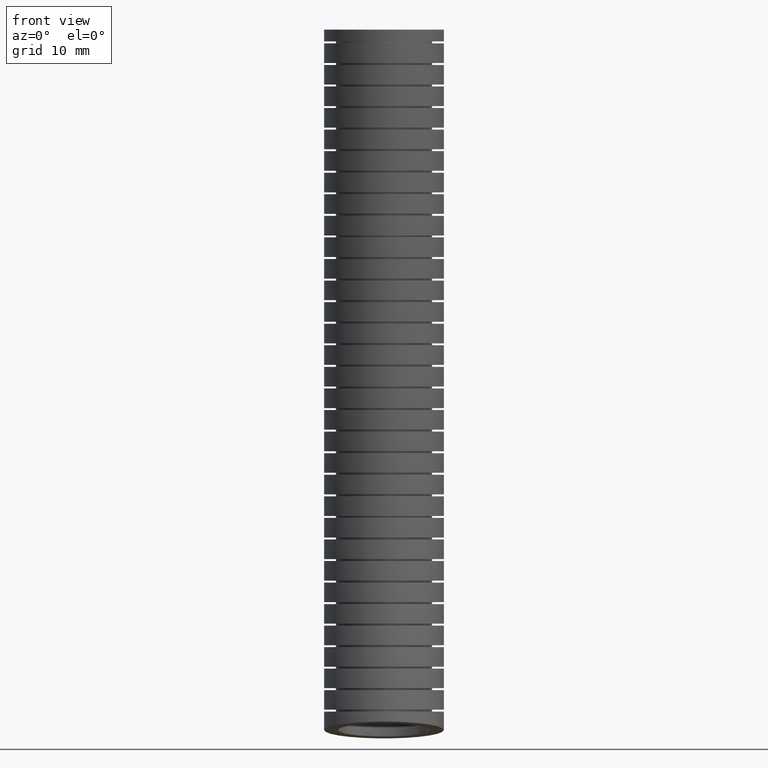
[diagram: clean part render]
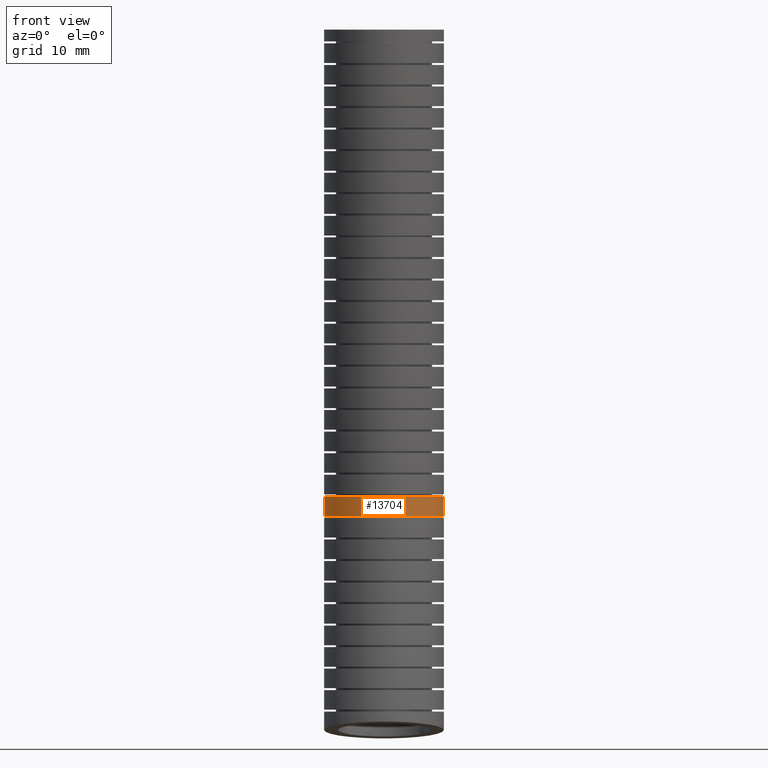
[diagram: same view with one face highlighted and labeled with its STEP entity id]
A machine part, front view. The second image highlights one B-rep face of the part: STEP entity #13704.
In plain terms, the highlighted face is a freeform B-spline surface patch.
Its self-contained STEP definition (entity closure, byte-faithful):
#764 = FACE_OUTER_BOUND ( 'NONE', #13701, .T. ) ;
#766 = CARTESIAN_POINT ( 'NONE',  ( 0.3050000000000000500, 0.05077321592231180700, -2.378945303618446700 ) ) ;
#835 = CARTESIAN_POINT ( 'NONE',  ( 0.3049999999999999400, -0.6339397472009050700, -3.484228316147418800 ) ) ;
#836 = CARTESIAN_POINT ( 'NONE',  ( 0.3049999999999999400, -0.6165911457587421900, -3.301565899820480900 ) ) ;
#837 = CARTESIAN_POINT ( 'NONE',  ( 0.3049999999999999400, -0.5689348463287677800, -2.799795492787948300 ) ) ;
#838 = CARTESIAN_POINT ( 'NONE',  ( 0.3050000000000000500, -0.5337097317260344200, -1.651227135941712300 ) ) ;
#839 = CARTESIAN_POINT ( 'NONE',  ( 0.3050000000000000500, -0.5794800608306244200, -0.6605737911785694000 ) ) ;
#840 = CARTESIAN_POINT ( 'NONE',  ( 0.3050000000000000500, -0.6100000000000001000, 0.0000000000000000000 ) ) ;
#841 = CARTESIAN_POINT ( 'NONE',  ( 0.3049999999999999900, -0.02999999999999999900, -3.569999999999999400 ) ) ;
#842 = CARTESIAN_POINT ( 'NONE',  ( 0.3049999999999999400, -0.01189670328115252300, -3.380058092153300100 ) ) ;
#843 = CARTESIAN_POINT ( 'NONE',  ( 0.3049999999999999900, 0.03783273064349424600, -2.858291051460112500 ) ) ;
#844 = CARTESIAN_POINT ( 'NONE',  ( 0.3049999999999999900, 0.07694042471324438700, -1.669468061939300500 ) ) ;
#845 = CARTESIAN_POINT ( 'NONE',  ( 0.3050000000000000500, 0.03078003440073750300, -0.6678710777714059700 ) ) ;
#846 = CARTESIAN_POINT ( 'NONE',  ( 0.3050000000000000500, 0.0000000000000000000, 0.0000000000000000000 ) ) ;
#849 =( BOUNDED_SURFACE ( )  B_SPLINE_SURFACE ( 3, 3, ( 
 ( #846, #845, #844, #843, #842, #841 ),
 ( #840, #839, #838, #837, #836, #835 ),
 ( #881, #880, #879, #878, #877, #876 ),
 ( #875, #874, #873, #872, #871, #870 ),
 ( #869, #868, #867, #866, #865, #864 ),
 ( #863, #862, #861, #860, #859, #858 ),
 ( #857, #856, #855, #854, #853, #852 ) ),
 .UNSPECIFIED., .F., .F., .F. ) 
 B_SPLINE_SURFACE_WITH_KNOTS ( ( 4, 3, 4 ),
 ( 4, 1, 1, 4 ),
 ( 0.0000000000000000000, 0.5000000000000000000, 1.000000000000000000 ),
 ( 0.0000000000000000000, 0.5599999999999999400, 0.8398242262648183400, 1.000000000000000000 ),
 .UNSPECIFIED. ) 
 GEOMETRIC_REPRESENTATION_ITEM ( )  RATIONAL_B_SPLINE_SURFACE ( (
 ( 1.000000000000000000, 1.000000000000000000, 1.000000000000000200, 1.000000000000000000, 1.000000000000000000, 1.000000000000000000),
 ( 0.3333333333333333100, 0.3333333333333333100, 0.3333333333333333100, 0.3333333333333333100, 0.3333333333333333100, 0.3333333333333333100),
 ( 0.3333333333333333100, 0.3333333333333333100, 0.3333333333333333100, 0.3333333333333333100, 0.3333333333333333100, 0.3333333333333333100),
 ( 1.000000000000000000, 1.000000000000000000, 1.000000000000000200, 1.000000000000000000, 1.000000000000000000, 1.000000000000000000),
 ( 0.3333333333333333100, 0.3333333333333333100, 0.3333333333333333100, 0.3333333333333333100, 0.3333333333333333100, 0.3333333333333333100),
 ( 0.3333333333333333100, 0.3333333333333333100, 0.3333333333333333100, 0.3333333333333333100, 0.3333333333333333100, 0.3333333333333333100),
 ( 1.000000000000000000, 1.000000000000000000, 1.000000000000000200, 1.000000000000000000, 1.000000000000000000, 1.000000000000000000) ) ) 
 REPRESENTATION_ITEM ( '' )  SURFACE ( )  );
#852 = CARTESIAN_POINT ( 'NONE',  ( 0.3049999999999999900, -0.02999999999999999900, -3.569999999999999400 ) ) ;
#853 = CARTESIAN_POINT ( 'NONE',  ( 0.3049999999999999400, -0.01189670328115252300, -3.380058092153300100 ) ) ;
#854 = CARTESIAN_POINT ( 'NONE',  ( 0.3049999999999999900, 0.03783273064349424600, -2.858291051460112500 ) ) ;
#855 = CARTESIAN_POINT ( 'NONE',  ( 0.3049999999999999900, 0.07694042471324438700, -1.669468061939300500 ) ) ;
#856 = CARTESIAN_POINT ( 'NONE',  ( 0.3050000000000000500, 0.03078003440073750300, -0.6678710777714059700 ) ) ;
#857 = CARTESIAN_POINT ( 'NONE',  ( 0.3050000000000000500, 0.0000000000000000000, 0.0000000000000000000 ) ) ;
#858 = CARTESIAN_POINT ( 'NONE',  ( 0.3049999999999999400, 0.5739397472009051300, -3.655771683852579600 ) ) ;
#859 = CARTESIAN_POINT ( 'NONE',  ( 0.3049999999999999400, 0.5927977391964371900, -3.458550284486119800 ) ) ;
#860 = CARTESIAN_POINT ( 'NONE',  ( 0.3049999999999999400, 0.6446003076157559300, -2.916786610132277200 ) ) ;
#861 = CARTESIAN_POINT ( 'NONE',  ( 0.3050000000000000500, 0.6875905811525232500, -1.687708987936889400 ) ) ;
#862 = CARTESIAN_POINT ( 'NONE',  ( 0.3050000000000000500, 0.6410401296320993300, -0.6751683643642422100 ) ) ;
#863 = CARTESIAN_POINT ( 'NONE',  ( 0.3050000000000000500, 0.6100000000000001000, 0.0000000000000000000 ) ) ;
#864 = CARTESIAN_POINT ( 'NONE',  ( -0.3049999999999998800, 0.5739397472009051300, -3.655771683852579600 ) ) ;
#865 = CARTESIAN_POINT ( 'NONE',  ( -0.3049999999999998800, 0.5927977391964373000, -3.458550284486119800 ) ) ;
#866 = CARTESIAN_POINT ( 'NONE',  ( -0.3049999999999999400, 0.6446003076157562600, -2.916786610132277200 ) ) ;
#867 = CARTESIAN_POINT ( 'NONE',  ( -0.3049999999999999400, 0.6875905811525234700, -1.687708987936889400 ) ) ;
#868 = CARTESIAN_POINT ( 'NONE',  ( -0.3049999999999999400, 0.6410401296320996600, -0.6751683643642422100 ) ) ;
#869 = CARTESIAN_POINT ( 'NONE',  ( -0.3049999999999999400, 0.6100000000000001000, 0.0000000000000000000 ) ) ;
#870 = CARTESIAN_POINT ( 'NONE',  ( -0.3049999999999999900, -0.02999999999999996100, -3.569999999999999400 ) ) ;
#871 = CARTESIAN_POINT ( 'NONE',  ( -0.3049999999999999400, -0.01189670328115248300, -3.380058092153300100 ) ) ;
#872 = CARTESIAN_POINT ( 'NONE',  ( -0.3049999999999999900, 0.03783273064349428100, -2.858291051460112500 ) ) ;
#873 = CARTESIAN_POINT ( 'NONE',  ( -0.3049999999999999900, 0.07694042471324441500, -1.669468061939300500 ) ) ;
#874 = CARTESIAN_POINT ( 'NONE',  ( -0.3050000000000000500, 0.03078003440073754200, -0.6678710777714059700 ) ) ;
#875 = CARTESIAN_POINT ( 'NONE',  ( -0.3050000000000000500, 3.735172737399427600E-017, 0.0000000000000000000 ) ) ;
#876 = CARTESIAN_POINT ( 'NONE',  ( -0.3050000000000000500, -0.6339397472009050700, -3.484228316147418800 ) ) ;
#877 = CARTESIAN_POINT ( 'NONE',  ( -0.3050000000000000500, -0.6165911457587421900, -3.301565899820480900 ) ) ;
#878 = CARTESIAN_POINT ( 'NONE',  ( -0.3050000000000000500, -0.5689348463287677800, -2.799795492787948300 ) ) ;
#879 = CARTESIAN_POINT ( 'NONE',  ( -0.3050000000000001000, -0.5337097317260344200, -1.651227135941712300 ) ) ;
#880 = CARTESIAN_POINT ( 'NONE',  ( -0.3050000000000001600, -0.5794800608306244200, -0.6605737911785694000 ) ) ;
#881 = CARTESIAN_POINT ( 'NONE',  ( -0.3050000000000001000, -0.6100000000000001000, 0.0000000000000000000 ) ) ;
#1061 = CARTESIAN_POINT ( 'NONE',  ( -0.3050000000000000500, 0.04762693433828677600, -2.478890630591160400 ) ) ;
#1101 = B_SPLINE_CURVE_WITH_KNOTS ( 'NONE', 3,
 ( #1115, #1114, #1113, #1112 ),
 .UNSPECIFIED., .F., .F.,
 ( 4, 4 ),
 ( 0.6655699774920165200, 0.6935919824838685500 ),
 .UNSPECIFIED. ) ;
#1102 = CARTESIAN_POINT ( 'NONE',  ( -0.2894594705316564400, -0.05049995263127419300, -2.478890630591160400 ) ) ;
#1103 = CARTESIAN_POINT ( 'NONE',  ( -0.2952227158728204500, -0.03145639664729527700, -2.478890630591160000 ) ) ;
#1104 = CARTESIAN_POINT ( 'NONE',  ( -0.3010547439263505700, -0.002233203258918987800, -2.478890630591159500 ) ) ;
#1105 = CARTESIAN_POINT ( 'NONE',  ( -0.3025264858621872200, 0.007618313831455478900, -2.478890630591159500 ) ) ;
#1106 = CARTESIAN_POINT ( 'NONE',  ( -0.3045022631452473100, 0.02754767261553343500, -2.478890630591160400 ) ) ;
#1107 = CARTESIAN_POINT ( 'NONE',  ( -0.3050000000000001600, 0.03764139521374901300, -2.478890630591159500 ) ) ;
#1108 = CARTESIAN_POINT ( 'NONE',  ( -0.3050000000000000500, 0.04762693433828677600, -2.478890630591160400 ) ) ;
#1110 = B_SPLINE_CURVE_WITH_KNOTS ( 'NONE', 3,
 ( #1108, #1107, #1106, #1105, #1104, #1103, #1102, #1171, #1170, #1169, #1168, #1167, #1166, #1165, #1164, #1163, #1162, #1161, #1160, #1159, #1158, #1157, #1156, #1155, #1154, #1153, #1152, #1151, #1150, #1149, #1148, #1147, #1146, #1145, #1144, #1143, #1142, #1141, #1140, #1139, #1138, #1137, #1136, #1135, #1134 ),
 .UNSPECIFIED., .F., .F.,
 ( 4, 2, 2, 2, 2, 2, 2, 2, 2, 2, 2, 1, 2, 2, 2, 2, 2, 2, 2, 2, 2, 2, 4 ),
 ( 0.02447060056067219800, 0.02523534043249534700, 0.02600008030431849600, 0.02752956004796479300, 0.02905903979161109100, 0.02982377966343424300, 0.03058851953525739200, 0.03211799927890369300, 0.03364747902254999800, 0.03517695876619629500, 0.03594169863801945100, 0.03670643850984260000, 0.03747117838166574800, 0.03823591825348890400, 0.03976539799713520200, 0.04053013786895835700, 0.04129487774078151300, 0.04282435748442781100, 0.04358909735625096000, 0.04435383722807410800, 0.04588331697172042000, 0.04741279671536671700, 0.04894227645901302200 ),
 .UNSPECIFIED. ) ;
#1111 = CARTESIAN_POINT ( 'NONE',  ( 0.3050000000000000500, 0.04762693435156142200, -2.478890630399940100 ) ) ;
#1112 = CARTESIAN_POINT ( 'NONE',  ( 0.3050000000000000500, 0.04762693435156142200, -2.478890630399940100 ) ) ;
#1113 = CARTESIAN_POINT ( 'NONE',  ( 0.3050000000000001000, 0.04878316757936334400, -2.445579867282462200 ) ) ;
#1114 = CARTESIAN_POINT ( 'NONE',  ( 0.3050000000000001000, 0.04983046100250379500, -2.412264699031035200 ) ) ;
#1115 = CARTESIAN_POINT ( 'NONE',  ( 0.3050000000000000500, 0.05077321592231180700, -2.378945303618446700 ) ) ;
#1132 = B_SPLINE_CURVE_WITH_KNOTS ( 'NONE', 3,
 ( #1211, #1210, #1209, #1208 ),
 .UNSPECIFIED., .F., .F.,
 ( 4, 4 ),
 ( 0.6655699774916643600, 0.6935919825375532800 ),
 .UNSPECIFIED. ) ;
#1134 = CARTESIAN_POINT ( 'NONE',  ( 0.3050000000000000500, 0.04762693435156142200, -2.478890630399940100 ) ) ;
#1135 = CARTESIAN_POINT ( 'NONE',  ( 0.3050000000000001600, 0.02748543307467832600, -2.478890630399940500 ) ) ;
#1136 = CARTESIAN_POINT ( 'NONE',  ( 0.3029957515154675400, 0.007489417105942149100, -2.478890630591160000 ) ) ;
#1137 = CARTESIAN_POINT ( 'NONE',  ( 0.2952217184166720000, -0.03145799012692851400, -2.478890630591160400 ) ) ;
#1138 = CARTESIAN_POINT ( 'NONE',  ( 0.2894263615874915200, -0.05059299359882461800, -2.478890630591159500 ) ) ;
#1139 = CARTESIAN_POINT ( 'NONE',  ( 0.2740095631499247500, -0.08772479707283770100, -2.478890630591160000 ) ) ;
#1140 = CARTESIAN_POINT ( 'NONE',  ( 0.2646009871399148700, -0.1052468927936732100, -2.478890630591160400 ) ) ;
#1141 = CARTESIAN_POINT ( 'NONE',  ( 0.2480261732880418600, -0.1300185476494691600, -2.478890630591160900 ) ) ;
#1142 = CARTESIAN_POINT ( 'NONE',  ( 0.2420879044807841300, -0.1380220057157705600, -2.478890630591159500 ) ) ;
#1143 = CARTESIAN_POINT ( 'NONE',  ( 0.2293630783324291400, -0.1535081238468670200, -2.478890630591160000 ) ) ;
#1144 = CARTESIAN_POINT ( 'NONE',  ( 0.2225740109165805800, -0.1609824805137474400, -2.478890630591162700 ) ) ;
#1145 = CARTESIAN_POINT ( 'NONE',  ( 0.2013814460595376700, -0.1821274388998621000, -2.478890630591162700 ) ) ;
#1146 = CARTESIAN_POINT ( 'NONE',  ( 0.1860223060043713100, -0.1947100735826417000, -2.478890630591160900 ) ) ;
#1147 = CARTESIAN_POINT ( 'NONE',  ( 0.1611425016777670300, -0.2113192326303407500, -2.478890630591161800 ) ) ;
#1148 = CARTESIAN_POINT ( 'NONE',  ( 0.1524936735622688700, -0.2164992890016412000, -2.478890630591160900 ) ) ;
#1149 = CARTESIAN_POINT ( 'NONE',  ( 0.1347895041235130700, -0.2259435159316714200, -2.478890630591160400 ) ) ;
#1150 = CARTESIAN_POINT ( 'NONE',  ( 0.1257686729744110200, -0.2301961353012913500, -2.478890630591161800 ) ) ;
#1151 = CARTESIAN_POINT ( 'NONE',  ( 0.09821418057216443900, -0.2415851312382909800, -2.478890630591161800 ) ) ;
#1152 = CARTESIAN_POINT ( 'NONE',  ( 0.07919323197051364400, -0.2473657544824220700, -2.478890630591160000 ) ) ;
#1153 = CARTESIAN_POINT ( 'NONE',  ( 0.04965532928637870400, -0.2532364149049078900, -2.478890630591160000 ) ) ;
#1154 = CARTESIAN_POINT ( 'NONE',  ( 0.03969193107396182300, -0.2547075540877393200, -2.478890630591160400 ) ) ;
#1155 = CARTESIAN_POINT ( 'NONE',  ( 0.01985093866260181200, -0.2566520052711839800, -2.478890630591160900 ) ) ;
#1156 = CARTESIAN_POINT ( 'NONE',  ( 2.428516210267459000E-006, -0.2576183058862475100, -2.478890630591158200 ) ) ;
#1157 = CARTESIAN_POINT ( 'NONE',  ( -0.01986093615456624400, -0.2566518486419772600, -2.478890630591160000 ) ) ;
#1158 = CARTESIAN_POINT ( 'NONE',  ( -0.03973185256427035100, -0.2547028165008650700, -2.478890630591160400 ) ) ;
#1159 = CARTESIAN_POINT ( 'NONE',  ( -0.04972598626572534400, -0.2532240289554844000, -2.478890630591160000 ) ) ;
#1160 = CARTESIAN_POINT ( 'NONE',  ( -0.07919800556418633800, -0.2473614791174748000, -2.478890630591159500 ) ) ;
#1161 = CARTESIAN_POINT ( 'NONE',  ( -0.09820830204209045300, -0.2415883253527295300, -2.478890630591159500 ) ) ;
#1162 = CARTESIAN_POINT ( 'NONE',  ( -0.1349794135519233600, -0.2263883293506045200, -2.478890630591160000 ) ) ;
#1163 = CARTESIAN_POINT ( 'NONE',  ( -0.1528905045964775400, -0.2168297941105943300, -2.478890630591160000 ) ) ;
#1164 = CARTESIAN_POINT ( 'NONE',  ( -0.1860176382392228200, -0.1947114610850041200, -2.478890630591160400 ) ) ;
#1165 = CARTESIAN_POINT ( 'NONE',  ( -0.2013829363132886900, -0.1821292795744534600, -2.478890630591160000 ) ) ;
#1166 = CARTESIAN_POINT ( 'NONE',  ( -0.2226114382041555800, -0.1609434690201645700, -2.478890630591160900 ) ) ;
#1167 = CARTESIAN_POINT ( 'NONE',  ( -0.2294079271401327800, -0.1534559974731753200, -2.478890630591160900 ) ) ;
#1168 = CARTESIAN_POINT ( 'NONE',  ( -0.2421035018097603100, -0.1380005574049502600, -2.478890630591160400 ) ) ;
#1169 = CARTESIAN_POINT ( 'NONE',  ( -0.2480341278514235400, -0.1300071974798385800, -2.478890630591162200 ) ) ;
#1170 = CARTESIAN_POINT ( 'NONE',  ( -0.2646004077735335500, -0.1052466815078384700, -2.478890630591162200 ) ) ;
#1171 = CARTESIAN_POINT ( 'NONE',  ( -0.2740355155917352800, -0.08767553618507799300, -2.478890630591160900 ) ) ;
#1172 = CARTESIAN_POINT ( 'NONE',  ( -0.2294321998248394500, -0.1502495506233742500, -2.378945303617190800 ) ) ;
#1173 = CARTESIAN_POINT ( 'NONE',  ( -0.2160778630543842800, -0.1649672986299946800, -2.378945303617189900 ) ) ;
#1174 = CARTESIAN_POINT ( 'NONE',  ( -0.2013523276290081200, -0.1783204198568139100, -2.378945303617192100 ) ) ;
#1175 = CARTESIAN_POINT ( 'NONE',  ( -0.1859309338704791500, -0.1909810178573593300, -2.378945303617192600 ) ) ;
#1176 = CARTESIAN_POINT ( 'NONE',  ( -0.1778246430677591400, -0.1969951533843959100, -2.378945303617192100 ) ) ;
#1177 = CARTESIAN_POINT ( 'NONE',  ( -0.1528204871455703700, -0.2136923374195837400, -2.378945303617190800 ) ) ;
#1178 = CARTESIAN_POINT ( 'NONE',  ( -0.1352913220111265100, -0.2230448990275247500, -2.378945303617190800 ) ) ;
#1179 = CARTESIAN_POINT ( 'NONE',  ( -0.09855510846545458000, -0.2382782524495196100, -2.378945303617190400 ) ) ;
#1180 = CARTESIAN_POINT ( 'NONE',  ( -0.07913717557198971000, -0.2441777095918230600, -2.378945303617190800 ) ) ;
#1181 = CARTESIAN_POINT ( 'NONE',  ( -0.04005919287968749700, -0.2519563308294327500, -2.378945303617191300 ) ) ;
#1182 = CARTESIAN_POINT ( 'NONE',  ( -0.02030206169118367600, -0.2539194712546990500, -2.378945303617192100 ) ) ;
#1183 = CARTESIAN_POINT ( 'NONE',  ( 0.009663512383467290000, -0.2539513723832742500, -2.378945303617192100 ) ) ;
#1184 = CARTESIAN_POINT ( 'NONE',  ( 0.01975965819063551700, -0.2534650905064554400, -2.378945303617191300 ) ) ;
#1185 = CARTESIAN_POINT ( 'NONE',  ( 0.03967854609987610900, -0.2515167906161242500, -2.378945303617192100 ) ) ;
#1186 = CARTESIAN_POINT ( 'NONE',  ( 0.04952786596829806400, -0.2500602545675196200, -2.378945303617194800 ) ) ;
#1187 = CARTESIAN_POINT ( 'NONE',  ( 0.07875292901773318900, -0.2442762345817288700, -2.378945303617194400 ) ) ;
#1188 = CARTESIAN_POINT ( 'NONE',  ( 0.09780894485302510400, -0.2385482211710017200, -2.378945303617192100 ) ) ;
#1189 = CARTESIAN_POINT ( 'NONE',  ( 0.1350304749156393500, -0.2231914527805722600, -2.378945303617193000 ) ) ;
#1190 = CARTESIAN_POINT ( 'NONE',  ( 0.1525958355937790700, -0.2138078721496178800, -2.378945303617193900 ) ) ;
#1191 = CARTESIAN_POINT ( 'NONE',  ( 0.1773932648974272700, -0.1972998975029064700, -2.378945303617193500 ) ) ;
#1192 = CARTESIAN_POINT ( 'NONE',  ( 0.1854014280714505500, -0.1913876727813070300, -2.378945303617192100 ) ) ;
#1193 = CARTESIAN_POINT ( 'NONE',  ( 0.2008908356224747800, -0.1787256097394715700, -2.378945303617192600 ) ) ;
#1194 = CARTESIAN_POINT ( 'NONE',  ( 0.2083926505663114500, -0.1719483811932679700, -2.378945303617192100 ) ) ;
#1195 = CARTESIAN_POINT ( 'NONE',  ( 0.2296188388083417500, -0.1507814637977771500, -2.378945303617192100 ) ) ;
#1196 = CARTESIAN_POINT ( 'NONE',  ( 0.2422366846649620100, -0.1354502052734713700, -2.378945303617192100 ) ) ;
#1197 = CARTESIAN_POINT ( 'NONE',  ( 0.2644349011919960900, -0.1023703434307669500, -2.378945303617192100 ) ) ;
#1198 = CARTESIAN_POINT ( 'NONE',  ( 0.2740303441879690100, -0.08448443078127253200, -2.378945303617193500 ) ) ;
#1199 = CARTESIAN_POINT ( 'NONE',  ( 0.2893008562863522700, -0.04775715210113361900, -2.378945303617193000 ) ) ;
#1200 = CARTESIAN_POINT ( 'NONE',  ( 0.2951108982405433200, -0.02875816797121466900, -2.378945303617190800 ) ) ;
#1201 = CARTESIAN_POINT ( 'NONE',  ( 0.3010236348230326800, 0.0007157792382961342800, -2.378945303617190800 ) ) ;
#1202 = CARTESIAN_POINT ( 'NONE',  ( 0.3025182291270258600, 0.01070238675505087700, -2.378945303617192100 ) ) ;
#1203 = CARTESIAN_POINT ( 'NONE',  ( 0.3045016582100884600, 0.03067591591307207400, -2.378945303617191700 ) ) ;
#1204 = CARTESIAN_POINT ( 'NONE',  ( 0.3050000000000001000, 0.04070379939850498500, -2.378945303618446700 ) ) ;
#1205 = CARTESIAN_POINT ( 'NONE',  ( 0.3050000000000000500, 0.05077321592231180700, -2.378945303618446700 ) ) ;
#1206 = B_SPLINE_CURVE_WITH_KNOTS ( 'NONE', 3,
 ( #1205, #1204, #1203, #1202, #1201, #1200, #1199, #1198, #1197, #1196, #1195, #1194, #1193, #1192, #1191, #1190, #1189, #1188, #1187, #1186, #1185, #1184, #1183, #1182, #1181, #1180, #1179, #1178, #1177, #1176, #1175, #1174, #1173, #1172, #1251, #1250, #1249, #1248, #1247, #1246, #1244, #1243, #1242 ),
 .UNSPECIFIED., .F., .F.,
 ( 4, 2, 2, 2, 2, 2, 2, 2, 2, 2, 2, 2, 2, 2, 2, 2, 1, 2, 2, 2, 2, 4 ),
 ( 0.0000000000000000000, 0.0007646385570034159300, 0.001529277114006831900, 0.003058554228013663700, 0.004587831342020494900, 0.006117108456027327500, 0.006881747013030741100, 0.007646385570034155600, 0.009175662684040982900, 0.01070493979804780900, 0.01146957835505122200, 0.01223421691205463600, 0.01376349402606146100, 0.01529277114006828700, 0.01682204825407511400, 0.01758668681107852800, 0.01835132536808194200, 0.01911596392508535500, 0.01988060248208876500, 0.02140987959609559600, 0.02293915671010242700, 0.02446843382410925400 ),
 .UNSPECIFIED. ) ;
#1207 = CARTESIAN_POINT ( 'NONE',  ( -0.3050000000000000500, 0.05077321592238287500, -2.378945303617191700 ) ) ;
#1208 = CARTESIAN_POINT ( 'NONE',  ( -0.3050000000000000500, 0.04762693433828677600, -2.478890630591160400 ) ) ;
#1209 = CARTESIAN_POINT ( 'NONE',  ( -0.3050000000000000500, 0.04878316757536509100, -2.445579867409694200 ) ) ;
#1210 = CARTESIAN_POINT ( 'NONE',  ( -0.3050000000000000500, 0.04983046100072403100, -2.412264699094031500 ) ) ;
#1211 = CARTESIAN_POINT ( 'NONE',  ( -0.3050000000000000500, 0.05077321592238287500, -2.378945303617191700 ) ) ;
#1242 = CARTESIAN_POINT ( 'NONE',  ( -0.3050000000000000500, 0.05077321592238287500, -2.378945303617191700 ) ) ;
#1243 = CARTESIAN_POINT ( 'NONE',  ( -0.3050000000000001000, 0.03080479074792975800, -2.378945303617191300 ) ) ;
#1244 = CARTESIAN_POINT ( 'NONE',  ( -0.3030541713226293500, 0.01104675230987540300, -2.378945303617192100 ) ) ;
#1246 = CARTESIAN_POINT ( 'NONE',  ( -0.2952934305336133400, -0.02805099182910201000, -2.378945303617191700 ) ) ;
#1247 = CARTESIAN_POINT ( 'NONE',  ( -0.2893997257706801300, -0.04746527918505657300, -2.378945303617191700 ) ) ;
#1248 = CARTESIAN_POINT ( 'NONE',  ( -0.2741734835328100100, -0.08419339383000758200, -2.378945303617192100 ) ) ;
#1249 = CARTESIAN_POINT ( 'NONE',  ( -0.2648183264100064100, -0.1017259938466173600, -2.378945303617191300 ) ) ;
#1250 = CARTESIAN_POINT ( 'NONE',  ( -0.2481022535990672100, -0.1267441624439513400, -2.378945303617191700 ) ) ;
#1251 = CARTESIAN_POINT ( 'NONE',  ( -0.2420913385781060000, -0.1348399365416847700, -2.378945303617191700 ) ) ;
#13701 = EDGE_LOOP ( 'NONE', ( #13731, #13733, #13724, #13727 ) ) ;
#13702 = VERTEX_POINT ( 'NONE', #766 ) ;
#13704 = ADVANCED_FACE ( 'NONE', ( #764 ), #849, .T. ) ;
#13722 = VERTEX_POINT ( 'NONE', #1061 ) ;
#13723 = EDGE_CURVE ( 'NONE', #13702, #13726, #1101, .T. ) ;
#13724 = ORIENTED_EDGE ( 'NONE', *, *, #13725, .T. ) ;
#13725 = EDGE_CURVE ( 'NONE', #13722, #13726, #1110, .T. ) ;
#13726 = VERTEX_POINT ( 'NONE', #1111 ) ;
#13727 = ORIENTED_EDGE ( 'NONE', *, *, #13723, .F. ) ;
#13729 = EDGE_CURVE ( 'NONE', #13732, #13722, #1132, .T. ) ;
#13730 = EDGE_CURVE ( 'NONE', #13702, #13732, #1206, .T. ) ;
#13731 = ORIENTED_EDGE ( 'NONE', *, *, #13730, .T. ) ;
#13732 = VERTEX_POINT ( 'NONE', #1207 ) ;
#13733 = ORIENTED_EDGE ( 'NONE', *, *, #13729, .T. ) ;